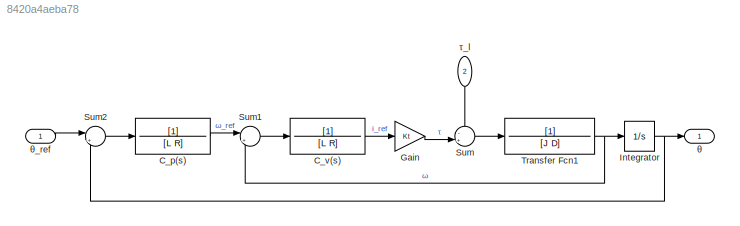
MODEL slx_8420a4aeba78
KIND model
CONFIG AbsTol = auto
CONFIG EnableMultiTasking = off
CONFIG FixedStep = auto
CONFIG MaxStep = auto
CONFIG MinStep = auto
CONFIG RelTol = 1e-3
CONFIG SampleTimeConstraint = Unconstrained
CONFIG Solver = VariableStepAuto
CONFIG SolverName = VariableStepAuto
CONFIG StartTime = 0.0
CONFIG StopTime = 10.0
BLOCK [TransferFcn] C_p(s)
  ContinuousStateAttributes = 'C_i'
  Denominator = [L R]
BLOCK [TransferFcn] C_v(s)
  ContinuousStateAttributes = 'C_i'
  Denominator = [L R]
BLOCK [Gain] Gain
  Gain = Kt
  OutDataTypeStr = Inherit: Inherit via internal rule
  ParamDataTypeStr = Inherit: Inherit via internal rule
  SaturateOnIntegerOverflow = off
BLOCK [Integrator] Integrator
  Ports = [1, 1]
BLOCK [Sum] Sum
  IconShape = round
  InputSameDT = off
  Inputs = -+|
  OutDataTypeStr = Inherit: Inherit via internal rule
  Ports = [2, 1]
  SaturateOnIntegerOverflow = off
BLOCK [Sum] Sum1
  IconShape = round
  InputSameDT = off
  Inputs = |+-
  OutDataTypeStr = Inherit: Inherit via internal rule
  Ports = [2, 1]
  SaturateOnIntegerOverflow = off
BLOCK [Sum] Sum2
  IconShape = round
  InputSameDT = off
  Inputs = |+-
  OutDataTypeStr = Inherit: Inherit via internal rule
  Ports = [2, 1]
  SaturateOnIntegerOverflow = off
BLOCK [TransferFcn] Transfer Fcn1
  Denominator = [J D]
BLOCK [Outport] θ
  IconDisplay = Port number
BLOCK [Inport] θ_ref
  IconDisplay = Port number
BLOCK [Inport] τ_l
  IconDisplay = Port number
  Port = 2
LINE C_p(s):1 -> Sum1:1
LINE C_v(s):1 -> Gain:1
LINE Gain:1 -> Sum:2
NET Integrator:1 -> Sum2:2, θ:1
LINE Sum1:1 -> C_v(s):1
LINE Sum2:1 -> C_p(s):1
LINE Sum:1 -> Transfer Fcn1:1
NET Transfer Fcn1:1 -> Integrator:1, Sum1:2
LINE θ_ref:1 -> Sum2:1
LINE τ_l:1 -> Sum:1
note: NET lines group one-source signal fan-out (src -> all destinations, sorted); 1:1 wires keep LINE
